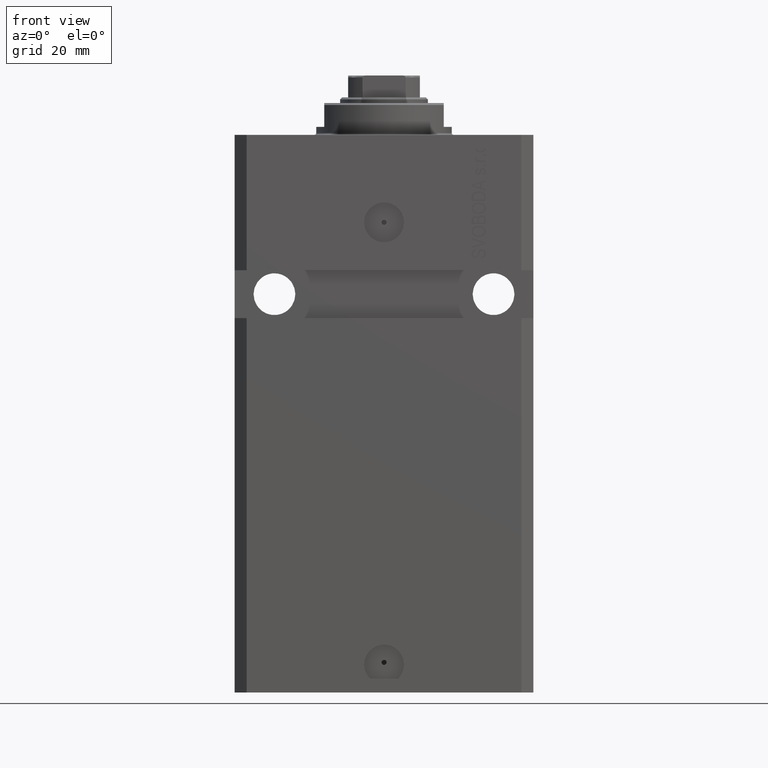
[diagram: clean part render]
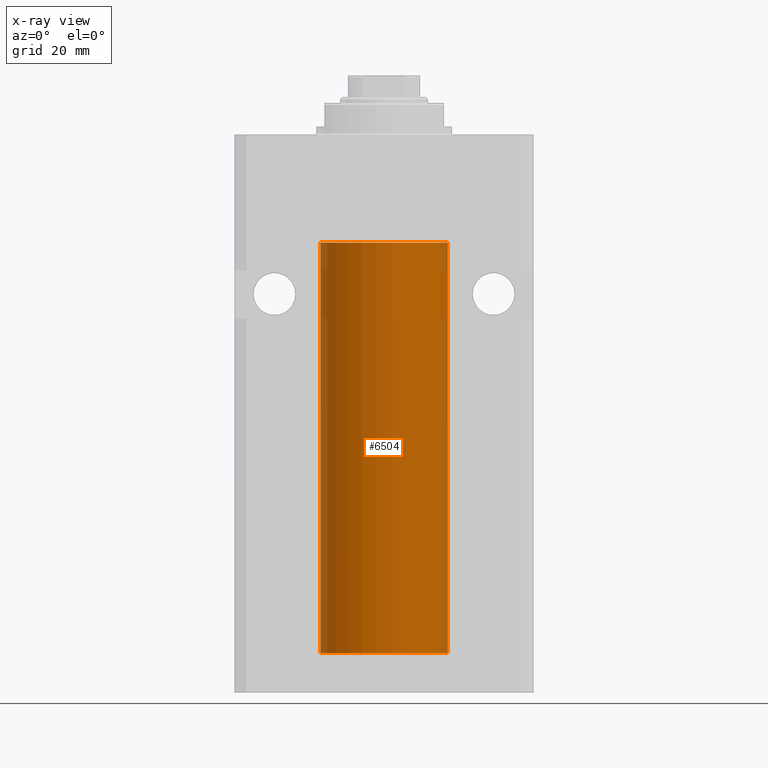
[diagram: x-ray — body ghosted, one internal face saturated and labeled with its STEP entity id]
A machine part, front view, then the same camera in x-ray: the body is ghosted and one INTERNAL B-rep face — a face not visible from any outside direction — is saturated and labeled: STEP entity #6504.
In plain terms, the highlighted cylindrical surface (partial cylindrical patch) has radius 16 mm, axis along (0, 0, 1).
Its self-contained STEP definition (entity closure, byte-faithful):
#635 = EDGE_CURVE ( 'NONE', #9459, #26025, #31273, .T. ) ;
#1292 = CARTESIAN_POINT ( 'NONE',  ( 15.99707785788560521, -0.3267997233067349017, -128.5571521527664345 ) ) ;
#2123 = CARTESIAN_POINT ( 'NONE',  ( -16.00000000000000000, 1.959434878635765131E-15, -130.0999999999999943 ) ) ;
#2690 = VECTOR ( 'NONE', #42717, 1000.000000000000000 ) ;
#3107 = CARTESIAN_POINT ( 'NONE',  ( 15.98778830858102040, -0.6250000000001306732, -127.8350147931928689 ) ) ;
#3288 = CARTESIAN_POINT ( 'NONE',  ( 15.98778830858102040, -0.6250000000001159073, -128.1648119328233690 ) ) ;
#3991 = CARTESIAN_POINT ( 'NONE',  ( 16.00000000000000000, -0.1650734421240379612, -128.6250000000000568 ) ) ;
#5137 = CIRCLE ( 'NONE', #12827, 16.00000000000000000 ) ;
#5397 = CARTESIAN_POINT ( 'NONE',  ( -16.00000000000000000, 1.959434878635765131E-15, -130.0999999999999943 ) ) ;
#6119 = LINE ( 'NONE', #36047, #7159 ) ;
#6504 = ADVANCED_FACE ( 'NONE', ( #28149 ), #20259, .F. ) ;
#6784 = VERTEX_POINT ( 'NONE', #31675 ) ;
#7139 = EDGE_CURVE ( 'NONE', #9459, #19443, #35915, .T. ) ;
#7159 = VECTOR ( 'NONE', #13574, 1000.000000000000000 ) ;
#9308 = CARTESIAN_POINT ( 'NONE',  ( -16.00000000000000711, -0.1631344205875858155, -128.6250000000001705 ) ) ;
#9459 = VERTEX_POINT ( 'NONE', #38313 ) ;
#9474 = DIRECTION ( 'NONE',  ( 1.000000000000000000, 0.000000000000000000, 0.000000000000000000 ) ) ;
#10263 = VECTOR ( 'NONE', #32320, 1000.000000000000000 ) ;
#10689 = CARTESIAN_POINT ( 'NONE',  ( 0.000000000000000000, 0.000000000000000000, -130.0999999999999943 ) ) ;
#10855 = EDGE_CURVE ( 'NONE', #24771, #45594, #6119, .T. ) ;
#11199 = CARTESIAN_POINT ( 'NONE',  ( 0.000000000000000000, 0.000000000000000000, -27.10000000000000142 ) ) ;
#12827 = AXIS2_PLACEMENT_3D ( 'NONE', #11199, #22455, #25808 ) ;
#12906 = LINE ( 'NONE', #2123, #20588 ) ;
#13186 = EDGE_CURVE ( 'NONE', #22491, #6784, #16882, .T. ) ;
#13358 = DIRECTION ( 'NONE',  ( 0.000000000000000000, 0.000000000000000000, 1.000000000000000000 ) ) ;
#13574 = DIRECTION ( 'NONE',  ( -0.000000000000000000, -0.000000000000000000, 1.000000000000000000 ) ) ;
#13758 = EDGE_CURVE ( 'NONE', #22491, #24771, #36313, .T. ) ;
#14135 = CARTESIAN_POINT ( 'NONE',  ( 15.98778830858101685, -0.6250000000001232348, -128.0000000000000000 ) ) ;
#15614 = B_SPLINE_CURVE_WITH_KNOTS ( 'NONE', 3,
 ( #23685, #9308, #20332, #38500, #16256, #45703, #28215, #31559, #34903, #31082 ),
 .UNSPECIFIED., .F., .F.,
 ( 4, 2, 2, 2, 4 ),
 ( 0.001954221322144799027, 0.002442665739568306450, 0.002931110156991814306, 0.003419554574415321728, 0.003907998991838829150 ),
 .UNSPECIFIED. ) ;
#15719 = ORIENTED_EDGE ( 'NONE', *, *, #7139, .F. ) ;
#15783 = ORIENTED_EDGE ( 'NONE', *, *, #13758, .F. ) ;
#16256 = CARTESIAN_POINT ( 'NONE',  ( -15.98779367741636648, -0.6248626626677442619, -128.1653963198503732 ) ) ;
#16474 = AXIS2_PLACEMENT_3D ( 'NONE', #10689, #13358, #31761 ) ;
#16882 = LINE ( 'NONE', #24787, #2690 ) ;
#17552 = ORIENTED_EDGE ( 'NONE', *, *, #33319, .T. ) ;
#18927 = EDGE_CURVE ( 'NONE', #26025, #45594, #38878, .T. ) ;
#19443 = VERTEX_POINT ( 'NONE', #23045 ) ;
#20259 = CYLINDRICAL_SURFACE ( 'NONE', #43852, 16.00000000000000000 ) ;
#20332 = CARTESIAN_POINT ( 'NONE',  ( -15.99708815688950381, -0.3263115027448994510, -128.5574096919822580 ) ) ;
#20588 = VECTOR ( 'NONE', #39214, 1000.000000000000000 ) ;
#22455 = DIRECTION ( 'NONE',  ( 0.000000000000000000, 0.000000000000000000, 1.000000000000000000 ) ) ;
#22491 = VERTEX_POINT ( 'NONE', #5397 ) ;
#23045 = CARTESIAN_POINT ( 'NONE',  ( 16.00000000000000000, 0.000000000000000000, -27.10000000000000142 ) ) ;
#23685 = CARTESIAN_POINT ( 'NONE',  ( -16.00000000000013145, 3.685127464164956467E-13, -128.6250000000034390 ) ) ;
#24332 = CARTESIAN_POINT ( 'NONE',  ( 0.000000000000000000, 0.000000000000000000, -130.0999999999999943 ) ) ;
#24677 = CARTESIAN_POINT ( 'NONE',  ( 16.00000000000013145, 3.665533114689029904E-13, -127.3749999999965752 ) ) ;
#24771 = VERTEX_POINT ( 'NONE', #41063 ) ;
#24787 = CARTESIAN_POINT ( 'NONE',  ( -16.00000000000000000, 1.959434878635765131E-15, -130.0999999999999943 ) ) ;
#24915 = CARTESIAN_POINT ( 'NONE',  ( 16.00000000000000355, -0.1632201307032006554, -127.3749999999998010 ) ) ;
#25044 = CARTESIAN_POINT ( 'NONE',  ( 16.00000000000000000, 2.199125140786256469E-15, -128.6250000000000284 ) ) ;
#25172 = CARTESIAN_POINT ( 'NONE',  ( 16.00000000000000000, 0.000000000000000000, -130.0999999999999943 ) ) ;
#25808 = DIRECTION ( 'NONE',  ( 1.000000000000000000, 0.000000000000000000, 0.000000000000000000 ) ) ;
#26025 = VERTEX_POINT ( 'NONE', #43536 ) ;
#26561 = VERTEX_POINT ( 'NONE', #26708 ) ;
#26708 = CARTESIAN_POINT ( 'NONE',  ( -16.00000000000000000, -1.314639473218082033E-14, -127.3749999999999858 ) ) ;
#27684 = DIRECTION ( 'NONE',  ( -0.000000000000000000, -0.000000000000000000, 1.000000000000000000 ) ) ;
#28149 = FACE_OUTER_BOUND ( 'NONE', #40283, .T. ) ;
#28215 = CARTESIAN_POINT ( 'NONE',  ( -15.99069874693027948, -0.5575440858643410103, -127.6738242501145066 ) ) ;
#29217 = CARTESIAN_POINT ( 'NONE',  ( -16.00000000000000000, 1.959434878635765131E-15, -27.10000000000000142 ) ) ;
#29356 = EDGE_CURVE ( 'NONE', #46174, #19443, #5137, .T. ) ;
#29620 = CARTESIAN_POINT ( 'NONE',  ( 16.00000000000000000, 2.199125140786256469E-15, -128.6250000000000284 ) ) ;
#31082 = CARTESIAN_POINT ( 'NONE',  ( -16.00000000000000000, -1.314639473218082033E-14, -127.3749999999999858 ) ) ;
#31202 = ORIENTED_EDGE ( 'NONE', *, *, #13186, .T. ) ;
#31273 = B_SPLINE_CURVE_WITH_KNOTS ( 'NONE', 3,
 ( #24677, #24915, #39491, #35893, #3107, #14135 ),
 .UNSPECIFIED., .F., .F.,
 ( 4, 2, 4 ),
 ( 0.001954221322144558768, 0.002442922366142232134, 0.002931623410139905066 ),
 .UNSPECIFIED. ) ;
#31559 = CARTESIAN_POINT ( 'NONE',  ( -15.99707459521409625, -0.3269651631532018987, -127.4429184892856028 ) ) ;
#31675 = CARTESIAN_POINT ( 'NONE',  ( -16.00000000000013145, 3.685127464164956467E-13, -128.6250000000034390 ) ) ;
#31761 = DIRECTION ( 'NONE',  ( 1.000000000000000000, 0.000000000000000000, 0.000000000000000000 ) ) ;
#32320 = DIRECTION ( 'NONE',  ( -0.000000000000000000, -0.000000000000000000, 1.000000000000000000 ) ) ;
#33197 = CARTESIAN_POINT ( 'NONE',  ( 15.99070553365076996, -0.5573460204199366386, -128.3264689786301176 ) ) ;
#33319 = EDGE_CURVE ( 'NONE', #6784, #26561, #15614, .T. ) ;
#33349 = EDGE_CURVE ( 'NONE', #26561, #46174, #12906, .T. ) ;
#34038 = ORIENTED_EDGE ( 'NONE', *, *, #635, .T. ) ;
#34903 = CARTESIAN_POINT ( 'NONE',  ( -16.00000000000000000, -0.1651602165840369285, -127.3749999999999858 ) ) ;
#35893 = CARTESIAN_POINT ( 'NONE',  ( 15.99071289786271954, -0.5571474671814827806, -127.6731966548882440 ) ) ;
#35915 = LINE ( 'NONE', #25172, #10263 ) ;
#36047 = CARTESIAN_POINT ( 'NONE',  ( 16.00000000000000000, 0.000000000000000000, -130.0999999999999943 ) ) ;
#36313 = CIRCLE ( 'NONE', #16474, 16.00000000000000000 ) ;
#37668 = CARTESIAN_POINT ( 'NONE',  ( 15.98778830858101685, -0.6250000000001232348, -128.0000000000000000 ) ) ;
#38313 = CARTESIAN_POINT ( 'NONE',  ( 16.00000000000013145, 3.665533114689029904E-13, -127.3749999999965752 ) ) ;
#38500 = CARTESIAN_POINT ( 'NONE',  ( -15.99071965633095793, -0.5569502390237165423, -128.3270950821868439 ) ) ;
#38878 = B_SPLINE_CURVE_WITH_KNOTS ( 'NONE', 3,
 ( #37668, #3288, #33197, #1292, #3991, #29620 ),
 .UNSPECIFIED., .F., .F.,
 ( 4, 2, 4 ),
 ( 0.002931623410139905066, 0.003419811200989341087, 0.003907998991838777109 ),
 .UNSPECIFIED. ) ;
#39214 = DIRECTION ( 'NONE',  ( -0.000000000000000000, -0.000000000000000000, 1.000000000000000000 ) ) ;
#39491 = CARTESIAN_POINT ( 'NONE',  ( 15.99708487730508821, -0.3264777333248704561, -127.4426616680992339 ) ) ;
#40283 = EDGE_LOOP ( 'NONE', ( #15783, #31202, #17552, #46483, #46830, #15719, #34038, #46247, #46237 ) ) ;
#41063 = CARTESIAN_POINT ( 'NONE',  ( 16.00000000000000000, 0.000000000000000000, -130.0999999999999943 ) ) ;
#42717 = DIRECTION ( 'NONE',  ( -0.000000000000000000, -0.000000000000000000, 1.000000000000000000 ) ) ;
#43536 = CARTESIAN_POINT ( 'NONE',  ( 15.98778830858101685, -0.6250000000001232348, -128.0000000000000000 ) ) ;
#43852 = AXIS2_PLACEMENT_3D ( 'NONE', #24332, #27684, #9474 ) ;
#45594 = VERTEX_POINT ( 'NONE', #25044 ) ;
#45703 = CARTESIAN_POINT ( 'NONE',  ( -15.98778295664474491, -0.6251369050462284305, -127.8356432545786561 ) ) ;
#46174 = VERTEX_POINT ( 'NONE', #29217 ) ;
#46237 = ORIENTED_EDGE ( 'NONE', *, *, #10855, .F. ) ;
#46247 = ORIENTED_EDGE ( 'NONE', *, *, #18927, .T. ) ;
#46483 = ORIENTED_EDGE ( 'NONE', *, *, #33349, .T. ) ;
#46830 = ORIENTED_EDGE ( 'NONE', *, *, #29356, .T. ) ;